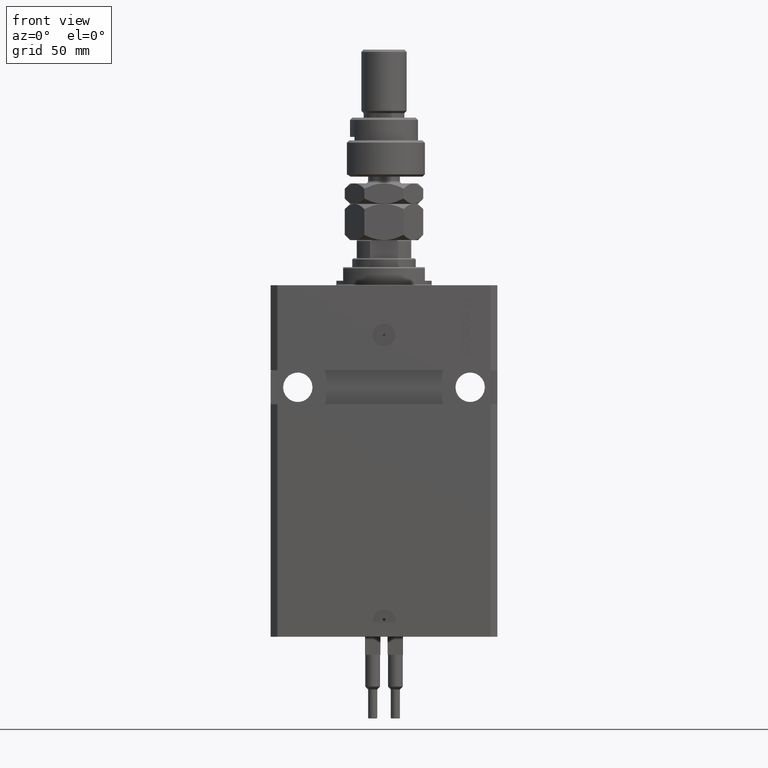
[diagram: clean part render]
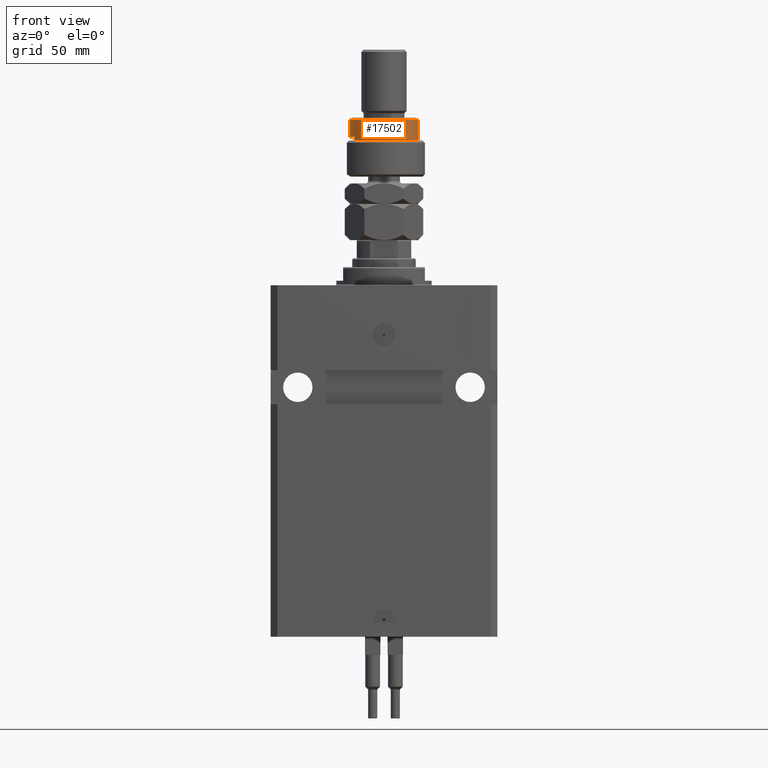
[diagram: same view with one face highlighted and labeled with its STEP entity id]
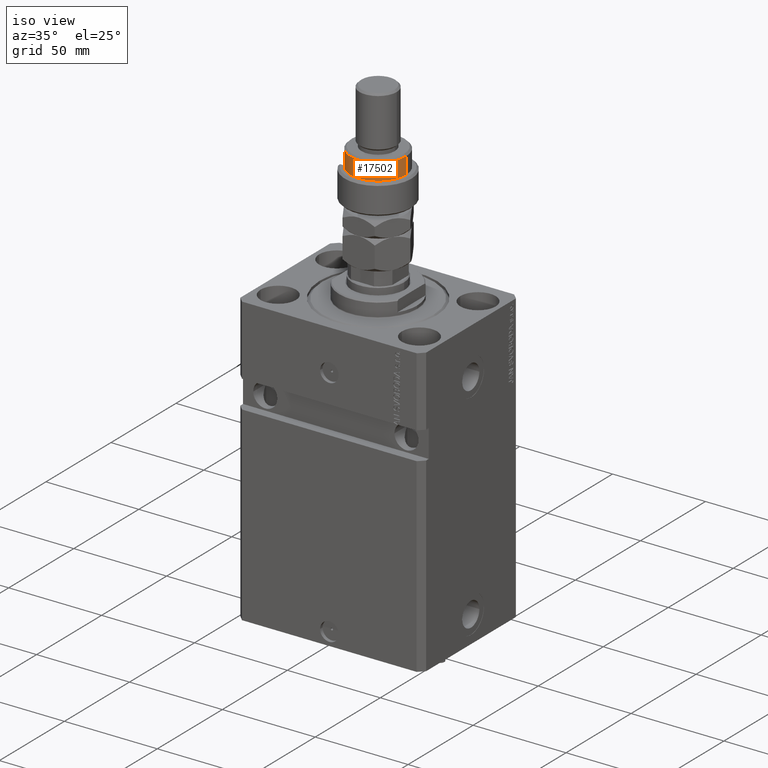
[diagram: same view with one face highlighted and labeled with its STEP entity id]
A machine part, front view. The second image highlights one B-rep face of the part: STEP entity #17502.
A second angle (iso view) of the same face is appended — the face is thin or edge-on in the first view.
In plain terms, the highlighted cylindrical surface (edge-blend (fillet) strip) has radius 15 mm, axis along (-0, -0, -1).
Its self-contained STEP definition (entity closure, byte-faithful):
#316 = CIRCLE ( 'NONE', #41342, 15.00000000000000000 ) ;
#360 = DIRECTION ( 'NONE',  ( 0.000000000000000000, 0.000000000000000000, -1.000000000000000000 ) ) ;
#483 = DIRECTION ( 'NONE',  ( -0.000000000000000000, -0.000000000000000000, -1.000000000000000000 ) ) ;
#2482 = EDGE_CURVE ( 'NONE', #31391, #16188, #17662, .T. ) ;
#2516 = LINE ( 'NONE', #33722, #23870 ) ;
#3124 = ORIENTED_EDGE ( 'NONE', *, *, #36987, .T. ) ;
#3872 = VERTEX_POINT ( 'NONE', #44724 ) ;
#4170 = EDGE_CURVE ( 'NONE', #31391, #5394, #316, .T. ) ;
#5394 = VERTEX_POINT ( 'NONE', #31712 ) ;
#6120 = EDGE_CURVE ( 'NONE', #3872, #5394, #2516, .T. ) ;
#7072 = CARTESIAN_POINT ( 'NONE',  ( -12.99038105676658006, -7.500000000000000000, 16.00000000000000000 ) ) ;
#8272 = ORIENTED_EDGE ( 'NONE', *, *, #13072, .T. ) ;
#8464 = CARTESIAN_POINT ( 'NONE',  ( 0.000000000000000000, 0.000000000000000000, 16.00000000000000000 ) ) ;
#9941 = CARTESIAN_POINT ( 'NONE',  ( -12.99038105676658006, -7.500000000000000000, 17.50000000000000000 ) ) ;
#10063 = CARTESIAN_POINT ( 'NONE',  ( 15.00000000000000000, 1.836970198721029589E-15, 16.00000000000000000 ) ) ;
#13072 = EDGE_CURVE ( 'NONE', #28986, #3872, #29845, .T. ) ;
#15159 = CARTESIAN_POINT ( 'NONE',  ( 0.000000000000000000, 0.000000000000000000, 26.00000000000000355 ) ) ;
#15646 = ORIENTED_EDGE ( 'NONE', *, *, #4170, .F. ) ;
#16188 = VERTEX_POINT ( 'NONE', #7072 ) ;
#17502 = ADVANCED_FACE ( 'NONE', ( #35059 ), #39768, .T. ) ;
#17662 = LINE ( 'NONE', #22373, #39588 ) ;
#20548 = ORIENTED_EDGE ( 'NONE', *, *, #46749, .F. ) ;
#20934 = DIRECTION ( 'NONE',  ( 0.000000000000000000, 0.000000000000000000, -1.000000000000000000 ) ) ;
#21858 = CIRCLE ( 'NONE', #41095, 15.00000000000000000 ) ;
#22112 = DIRECTION ( 'NONE',  ( -0.000000000000000000, -0.000000000000000000, -1.000000000000000000 ) ) ;
#22373 = CARTESIAN_POINT ( 'NONE',  ( -12.99038105676658006, -7.500000000000000000, 26.00000000000000355 ) ) ;
#23694 = DIRECTION ( 'NONE',  ( 0.000000000000000000, 0.000000000000000000, 1.000000000000000000 ) ) ;
#23870 = VECTOR ( 'NONE', #41849, 1000.000000000000000 ) ;
#23977 = AXIS2_PLACEMENT_3D ( 'NONE', #36143, #20934, #28790 ) ;
#24467 = DIRECTION ( 'NONE',  ( 1.000000000000000000, 0.000000000000000000, 0.000000000000000000 ) ) ;
#25998 = VERTEX_POINT ( 'NONE', #10063 ) ;
#28278 = CARTESIAN_POINT ( 'NONE',  ( 15.00000000000000000, 1.836970198721029589E-15, 26.00000000000000355 ) ) ;
#28790 = DIRECTION ( 'NONE',  ( 1.000000000000000000, 0.000000000000000000, 0.000000000000000000 ) ) ;
#28986 = VERTEX_POINT ( 'NONE', #47698 ) ;
#29128 = EDGE_LOOP ( 'NONE', ( #20548, #8272, #33662, #15646, #48689, #3124 ) ) ;
#29845 = CIRCLE ( 'NONE', #23977, 15.00000000000000000 ) ;
#31391 = VERTEX_POINT ( 'NONE', #9941 ) ;
#31712 = CARTESIAN_POINT ( 'NONE',  ( -15.00000000000000000, 0.000000000000000000, 17.50000000000000000 ) ) ;
#33662 = ORIENTED_EDGE ( 'NONE', *, *, #6120, .T. ) ;
#33722 = CARTESIAN_POINT ( 'NONE',  ( -15.00000000000000000, 0.000000000000000000, 26.00000000000000355 ) ) ;
#35059 = FACE_OUTER_BOUND ( 'NONE', #29128, .T. ) ;
#35830 = DIRECTION ( 'NONE',  ( -0.000000000000000000, -0.000000000000000000, -1.000000000000000000 ) ) ;
#36143 = CARTESIAN_POINT ( 'NONE',  ( 0.000000000000000000, 0.000000000000000000, 24.99999999999997868 ) ) ;
#36417 = VECTOR ( 'NONE', #483, 1000.000000000000000 ) ;
#36537 = DIRECTION ( 'NONE',  ( -1.000000000000000000, 0.000000000000000000, 0.000000000000000000 ) ) ;
#36987 = EDGE_CURVE ( 'NONE', #16188, #25998, #21858, .T. ) ;
#37318 = CARTESIAN_POINT ( 'NONE',  ( 0.000000000000000000, 0.000000000000000000, 17.50000000000000000 ) ) ;
#39588 = VECTOR ( 'NONE', #22112, 1000.000000000000000 ) ;
#39768 = CYLINDRICAL_SURFACE ( 'NONE', #40920, 15.00000000000000000 ) ;
#40920 = AXIS2_PLACEMENT_3D ( 'NONE', #15159, #35830, #47379 ) ;
#41095 = AXIS2_PLACEMENT_3D ( 'NONE', #8464, #23694, #24467 ) ;
#41342 = AXIS2_PLACEMENT_3D ( 'NONE', #37318, #360, #36537 ) ;
#41849 = DIRECTION ( 'NONE',  ( -0.000000000000000000, -0.000000000000000000, -1.000000000000000000 ) ) ;
#44724 = CARTESIAN_POINT ( 'NONE',  ( -15.00000000000000000, 0.000000000000000000, 24.99999999999997868 ) ) ;
#46749 = EDGE_CURVE ( 'NONE', #28986, #25998, #48204, .T. ) ;
#47379 = DIRECTION ( 'NONE',  ( -1.000000000000000000, 0.000000000000000000, 0.000000000000000000 ) ) ;
#47698 = CARTESIAN_POINT ( 'NONE',  ( 15.00000000000000000, 1.836970198721029589E-15, 24.99999999999997868 ) ) ;
#48204 = LINE ( 'NONE', #28278, #36417 ) ;
#48689 = ORIENTED_EDGE ( 'NONE', *, *, #2482, .T. ) ;